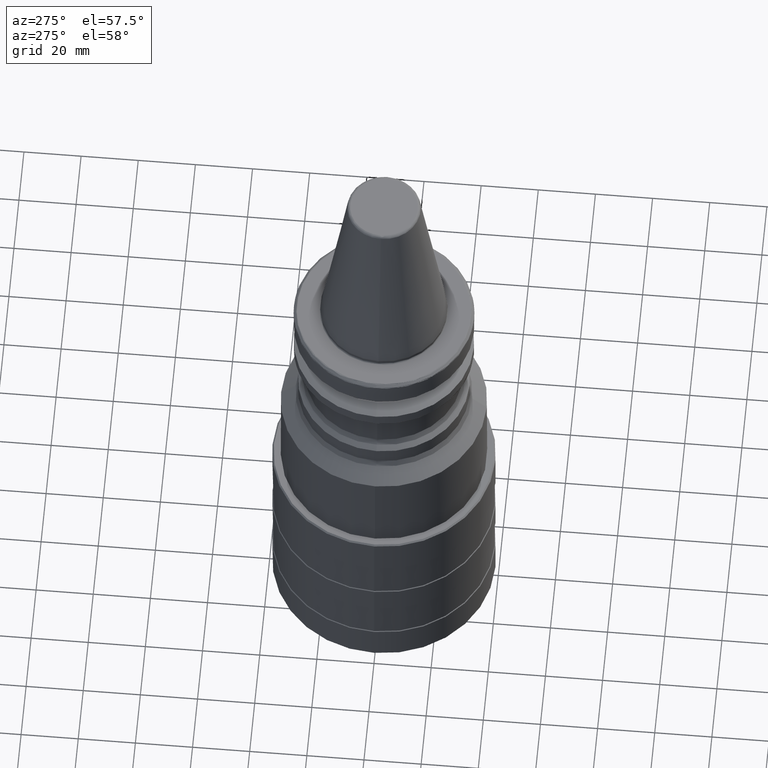
[diagram: clean part render]
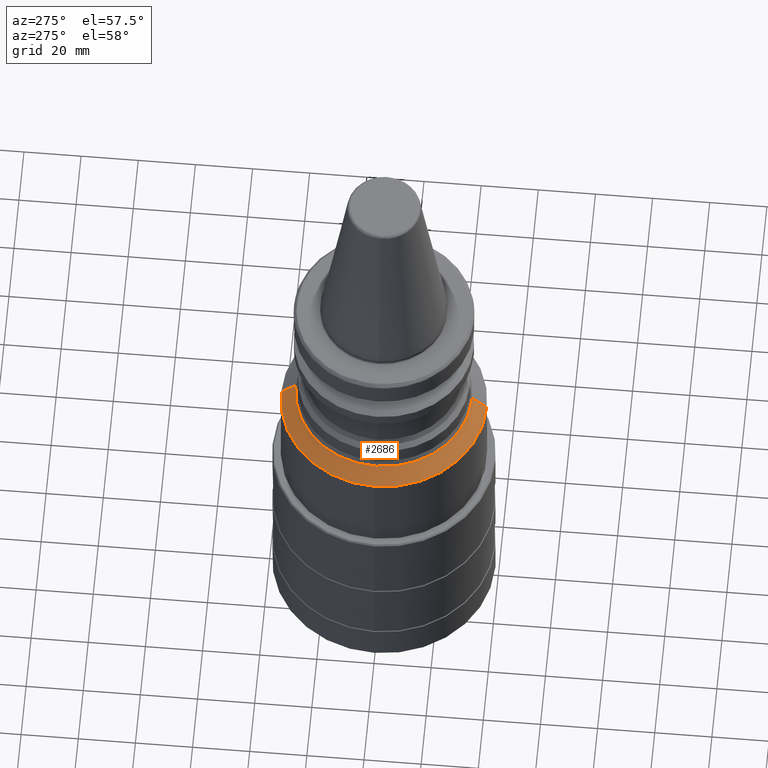
[diagram: same view with one face highlighted and labeled with its STEP entity id]
A machine part, auxiliary view. The second image highlights one B-rep face of the part: STEP entity #2686.
In plain terms, the highlighted conical surface has half-angle 45 deg.
Its self-contained STEP definition (entity closure, byte-faithful):
#7 = ORIENTED_EDGE ( 'NONE', *, *, #613, .F. ) ;
#13 = VERTEX_POINT ( 'NONE', #2109 ) ;
#145 = ORIENTED_EDGE ( 'NONE', *, *, #2465, .T. ) ;
#199 = CARTESIAN_POINT ( 'NONE',  ( -30.87867965602106700, -9.242537291065391200E-010, -54.57867965597899500 ) ) ;
#245 = AXIS2_PLACEMENT_3D ( 'NONE', #1318, #1314, #1311 ) ;
#246 = DIRECTION ( 'NONE',  ( 0.0000000000000000000, 1.000000000000000000, 0.0000000000000000000 ) ) ;
#247 = DIRECTION ( 'NONE',  ( 0.0000000000000000000, 1.123573608264520200E-016, -1.000000000000000000 ) ) ;
#248 = CARTESIAN_POINT ( 'NONE',  ( 0.0000000000000000000, 5.007417855406813200E-030, -54.57867965600004800 ) ) ;
#272 = VERTEX_POINT ( 'NONE', #1769 ) ;
#367 = CIRCLE ( 'NONE', #430, 30.87867965600003500 ) ;
#375 = CIRCLE ( 'NONE', #2503, 30.87867965600005200 ) ;
#430 = AXIS2_PLACEMENT_3D ( 'NONE', #1160, #1153, #1150 ) ;
#448 = AXIS2_PLACEMENT_3D ( 'NONE', #485, #493, #469 ) ;
#469 = DIRECTION ( 'NONE',  ( 0.0000000000000000000, 1.000000000000000000, 0.0000000000000000000 ) ) ;
#484 = CIRCLE ( 'NONE', #930, 36.00000000000001400 ) ;
#485 = CARTESIAN_POINT ( 'NONE',  ( 0.0000000000000000000, 3.343628375672282700E-031, -59.70000000000001700 ) ) ;
#493 = DIRECTION ( 'NONE',  ( 0.0000000000000000000, 9.637352644315590300E-017, -1.000000000000000000 ) ) ;
#613 = EDGE_CURVE ( 'NONE', #1546, #2170, #484, .T. ) ;
#930 = AXIS2_PLACEMENT_3D ( 'NONE', #1259, #1257, #1256 ) ;
#1150 = DIRECTION ( 'NONE',  ( 0.0000000000000000000, 1.000000000000000000, 0.0000000000000000000 ) ) ;
#1153 = DIRECTION ( 'NONE',  ( 0.0000000000000000000, 1.123573608264520200E-016, -1.000000000000000000 ) ) ;
#1160 = CARTESIAN_POINT ( 'NONE',  ( 0.0000000000000000000, 3.466673899897024500E-030, -54.57867965600003400 ) ) ;
#1184 = VERTEX_POINT ( 'NONE', #199 ) ;
#1256 = DIRECTION ( 'NONE',  ( 1.000000000000000000, 0.0000000000000000000, 0.0000000000000000000 ) ) ;
#1257 = DIRECTION ( 'NONE',  ( -0.0000000000000000000, -0.0000000000000000000, -1.000000000000000000 ) ) ;
#1259 = CARTESIAN_POINT ( 'NONE',  ( 0.0000000000000000000, 0.0000000000000000000, -59.70000000000001700 ) ) ;
#1311 = DIRECTION ( 'NONE',  ( 1.000000000000000000, 0.0000000000000000000, 0.0000000000000000000 ) ) ;
#1314 = DIRECTION ( 'NONE',  ( -0.0000000000000000000, -0.0000000000000000000, -1.000000000000000000 ) ) ;
#1318 = CARTESIAN_POINT ( 'NONE',  ( 0.0000000000000000000, 0.0000000000000000000, -59.70000000000001700 ) ) ;
#1349 = ORIENTED_EDGE ( 'NONE', *, *, #2368, .F. ) ;
#1423 = LINE ( 'NONE', #2230, #1629 ) ;
#1515 = CARTESIAN_POINT ( 'NONE',  ( 3.781547620261694100E-015, -30.87867965600004200, -54.57867965600003400 ) ) ;
#1546 = VERTEX_POINT ( 'NONE', #2749 ) ;
#1629 = VECTOR ( 'NONE', #2425, 1000.000000000000000 ) ;
#1727 = EDGE_CURVE ( 'NONE', #13, #2170, #3024, .T. ) ;
#1769 = CARTESIAN_POINT ( 'NONE',  ( 4.408728476930474000E-015, -36.00000000000002100, -59.70000000000001700 ) ) ;
#1840 = CARTESIAN_POINT ( 'NONE',  ( 0.0000000000000000000, 36.00000000000002100, -59.70000000000001700 ) ) ;
#1876 = CIRCLE ( 'NONE', #245, 36.00000000000001400 ) ;
#1984 = EDGE_CURVE ( 'NONE', #2297, #272, #1423, .T. ) ;
#2109 = CARTESIAN_POINT ( 'NONE',  ( 0.0000000000000000000, 30.87867965600004500, -54.57867965600004800 ) ) ;
#2170 = VERTEX_POINT ( 'NONE', #1840 ) ;
#2230 = CARTESIAN_POINT ( 'NONE',  ( 4.408728476930474000E-015, -36.00000000000002100, -59.70000000000001700 ) ) ;
#2297 = VERTEX_POINT ( 'NONE', #1515 ) ;
#2368 = EDGE_CURVE ( 'NONE', #272, #1546, #1876, .T. ) ;
#2425 = DIRECTION ( 'NONE',  ( 8.659560562354935300E-017, -0.7071067811865475700, -0.7071067811865474600 ) ) ;
#2428 = FACE_OUTER_BOUND ( 'NONE', #2678, .T. ) ;
#2465 = EDGE_CURVE ( 'NONE', #2297, #1184, #367, .T. ) ;
#2503 = AXIS2_PLACEMENT_3D ( 'NONE', #248, #247, #246 ) ;
#2507 = VECTOR ( 'NONE', #2609, 999.9999999999998900 ) ;
#2609 = DIRECTION ( 'NONE',  ( 0.0000000000000000000, 0.7071067811865479100, -0.7071067811865472400 ) ) ;
#2627 = ORIENTED_EDGE ( 'NONE', *, *, #1727, .T. ) ;
#2654 = CARTESIAN_POINT ( 'NONE',  ( 0.0000000000000000000, 36.00000000000002100, -59.70000000000001700 ) ) ;
#2678 = EDGE_LOOP ( 'NONE', ( #2978, #145, #2839, #2627, #7, #1349 ) ) ;
#2686 = ADVANCED_FACE ( 'NONE', ( #2428 ), #3121, .T. ) ;
#2749 = CARTESIAN_POINT ( 'NONE',  ( -36.00000000000001400, 4.408728476930472400E-015, -59.70000000000001700 ) ) ;
#2764 = EDGE_CURVE ( 'NONE', #1184, #13, #375, .T. ) ;
#2839 = ORIENTED_EDGE ( 'NONE', *, *, #2764, .T. ) ;
#2978 = ORIENTED_EDGE ( 'NONE', *, *, #1984, .F. ) ;
#3024 = LINE ( 'NONE', #2654, #2507 ) ;
#3121 = CONICAL_SURFACE ( 'NONE', #448, 36.00000000000002100, 0.7853981633974485000 ) ;